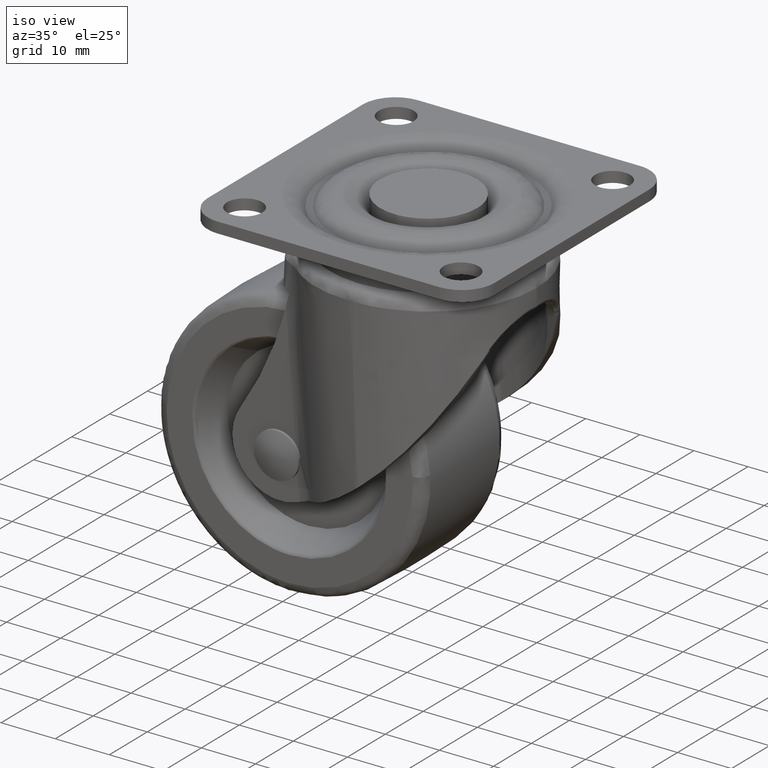
[diagram: clean part render]
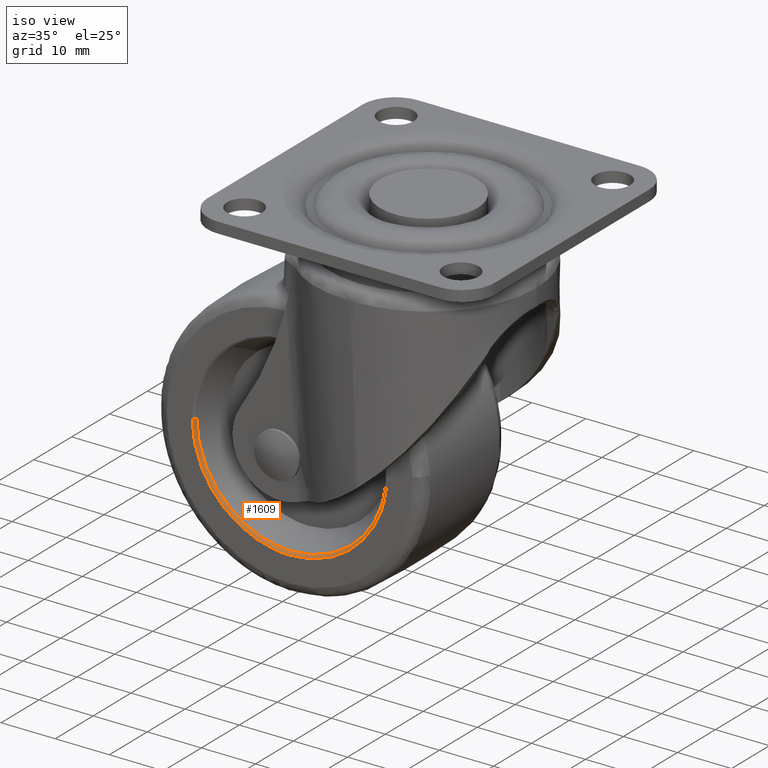
[diagram: same view with one face highlighted and labeled with its STEP entity id]
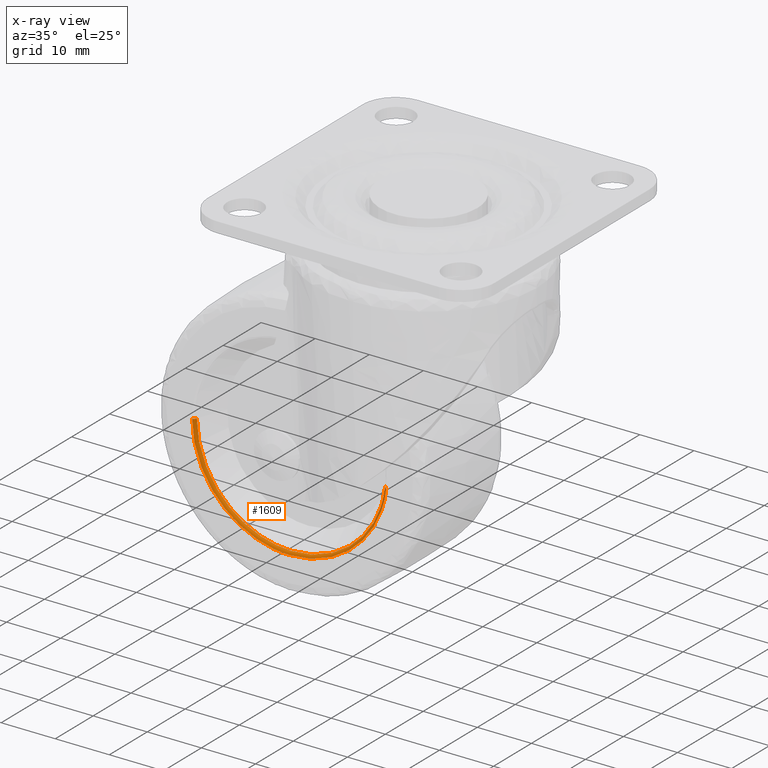
[diagram: x-ray of the same camera — body ghosted, the highlighted face saturated]
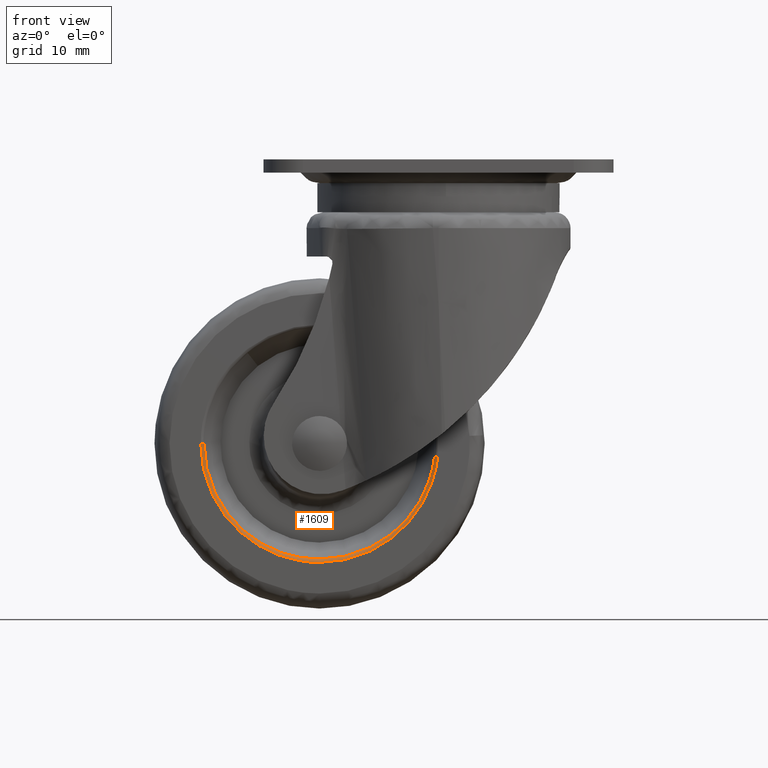
[diagram: same view with one face highlighted and labeled with its STEP entity id]
A machine part, iso view. The second image highlights one B-rep face of the part: STEP entity #1609.
The next image is the same camera in x-ray: the body ghosted, the highlighted face saturated — about 0% of this face is hidden behind the body in this view.
A second angle (front view) of the same face is appended — the face is thin or edge-on in the first view.
In plain terms, the highlighted face is a freeform B-spline surface patch.
Its self-contained STEP definition (entity closure, byte-faithful):
#314=CARTESIAN_POINT('',(-17.501290000000001,-10.500000000058130,-42.999999999999993));
#315=VERTEX_POINT('',#314);
#329=CARTESIAN_POINT('',(0.0,-10.500000000000000,-60.501289999999997));
#330=VERTEX_POINT('',#329);
#331=CARTESIAN_POINT('',(-17.501290000000001,-10.500000000058130,-43.000000000000007));
#332=CARTESIAN_POINT('',(-17.501290000000012,-10.500000000000000,-60.501289999999997));
#333=CARTESIAN_POINT('',(0.0,-10.500000000000000,-60.501289999999997));
#341=(BOUNDED_CURVE()B_SPLINE_CURVE(2,(#331,#332,#333),.UNSPECIFIED.,.F.,.U.)B_SPLINE_CURVE_WITH_KNOTS((3,3),(0.750000000000000,1.0),.UNSPECIFIED.)CURVE()GEOMETRIC_REPRESENTATION_ITEM()RATIONAL_B_SPLINE_CURVE((1.0,0.707106781186547,1.0))REPRESENTATION_ITEM(''));
#342=EDGE_CURVE('',#315,#330,#341,.T.);
#344=CARTESIAN_POINT('',(17.384235050748920,-10.500000000098749,-45.020772962114407));
#345=VERTEX_POINT('',#344);
#346=CARTESIAN_POINT('',(0.0,-10.500000000000000,-60.501289999999997));
#347=CARTESIAN_POINT('',(15.584753498702792,-10.500000000000000,-60.501290000000004));
#348=CARTESIAN_POINT('',(17.384235050748924,-10.500000000098749,-45.020772962114407));
#356=(BOUNDED_CURVE()B_SPLINE_CURVE(2,(#346,#347,#348),.UNSPECIFIED.,.F.,.U.)B_SPLINE_CURVE_WITH_KNOTS((3,3),(0.0,0.229999999999323),.UNSPECIFIED.)CURVE()GEOMETRIC_REPRESENTATION_ITEM()RATIONAL_B_SPLINE_CURVE((1.0,0.730538238692417,0.956886118189327))REPRESENTATION_ITEM(''));
#357=EDGE_CURVE('',#330,#345,#356,.T.);
#1487=CARTESIAN_POINT('',(17.880890859675560,-11.0,-45.078505075754123));
#1488=VERTEX_POINT('',#1487);
#1489=CARTESIAN_POINT('',(17.880890859675567,-11.0,-45.078505075754137));
#1490=CARTESIAN_POINT('',(17.384235050949144,-10.999999978971777,-45.020772962102434));
#1491=CARTESIAN_POINT('',(17.384235050748917,-10.500000000098748,-45.020772962114407));
#1499=(BOUNDED_CURVE()B_SPLINE_CURVE(2,(#1489,#1490,#1491),.UNSPECIFIED.,.F.,.U.)B_SPLINE_CURVE_WITH_KNOTS((3,3),(-1.726807256554491,-0.285995334446392),.UNSPECIFIED.)CURVE()GEOMETRIC_REPRESENTATION_ITEM()RATIONAL_B_SPLINE_CURVE((0.844728310412122,0.595760594072297,0.840342784791708))REPRESENTATION_ITEM(''));
#1500=EDGE_CURVE('',#1488,#345,#1499,.T.);
#1519=CARTESIAN_POINT('',(-18.001289999724850,-11.0,-43.0));
#1520=VERTEX_POINT('',#1519);
#1534=CARTESIAN_POINT('',(-18.001289999724861,-11.0,-43.000000000000007));
#1535=CARTESIAN_POINT('',(-17.501290000116246,-10.999999999449708,-43.000000000000007));
#1536=CARTESIAN_POINT('',(-17.501289999999997,-10.500000000058126,-42.999999999999993));
#1544=(BOUNDED_CURVE()B_SPLINE_CURVE(2,(#1534,#1535,#1536),.UNSPECIFIED.,.F.,.U.)B_SPLINE_CURVE_WITH_KNOTS((3,3),(-1.726807298389389,-0.285995334281288),.UNSPECIFIED.)CURVE()GEOMETRIC_REPRESENTATION_ITEM()RATIONAL_B_SPLINE_CURVE((0.882788775813012,0.622603437981385,0.878205638970638))REPRESENTATION_ITEM(''));
#1545=EDGE_CURVE('',#1520,#315,#1544,.T.);
#1552=CARTESIAN_POINT('',(-18.035966975938482,-10.998796057863096,-42.999999999999979));
#1553=CARTESIAN_POINT('',(-18.035966975938496,-10.998796057863091,-61.035966975938479));
#1554=CARTESIAN_POINT('',(-2.208696E-015,-10.998796057863096,-61.035966975938479));
#1555=CARTESIAN_POINT('',(16.060878908462044,-10.998796057863089,-61.035966975938472));
#1556=CARTESIAN_POINT('',(17.915335913943071,-10.998796057863091,-45.082509027045290));
#1557=CARTESIAN_POINT('',(-17.462420128313710,-11.038669809712472,-43.0));
#1558=CARTESIAN_POINT('',(-17.462420128313710,-11.038669809712468,-60.462420128313703));
#1559=CARTESIAN_POINT('',(-2.138459E-015,-11.038669809712472,-60.462420128313710));
#1560=CARTESIAN_POINT('',(15.550140200616724,-11.038669809712468,-60.462420128313710));
#1561=CARTESIAN_POINT('',(17.345625154808889,-11.038669809712472,-45.016284882301314));
#1562=CARTESIAN_POINT('',(-17.502506853163233,-10.465137807991816,-42.999999999999993));
#1563=CARTESIAN_POINT('',(-17.502506853163222,-10.465137807991816,-60.502506853163226));
#1564=CARTESIAN_POINT('',(-2.143368E-015,-10.465137807991816,-60.502506853163226));
#1565=CARTESIAN_POINT('',(15.585837096408559,-10.465137807991816,-60.502506853163247));
#1566=CARTESIAN_POINT('',(17.385443765162691,-10.465137807991814,-45.020913465092327));
#1574=(BOUNDED_SURFACE()B_SPLINE_SURFACE(2,2,((#1552,#1557,#1562),(#1553,#1558,#1563),(#1554,#1559,#1564),(#1555,#1560,#1565),(#1556,#1561,#1566)),.UNSPECIFIED.,.F.,.F.,.U.)B_SPLINE_SURFACE_WITH_KNOTS((3,2,3),(3,3),(0.0,29.882968527787909,57.375299573352791),(0.0,0.911187326585326),.UNSPECIFIED.)GEOMETRIC_REPRESENTATION_ITEM()RATIONAL_B_SPLINE_SURFACE(((0.910069597288582,0.595552229409054,0.905027256244088),(0.643516383594467,0.421119019965908,0.639950910048850),(0.910069597288582,0.595552229409054,0.905027256244088),(0.664840640689996,0.435073676721360,0.661157017744469),(0.870832964232808,0.569875660979023,0.866008018084149)))REPRESENTATION_ITEM('')SURFACE());
#1575=ORIENTED_EDGE('',*,*,#357,.F.);
#1576=ORIENTED_EDGE('',*,*,#342,.F.);
#1577=ORIENTED_EDGE('',*,*,#1545,.F.);
#1578=CARTESIAN_POINT('',(0.0,-11.0,-61.001289999999997));
#1579=VERTEX_POINT('',#1578);
#1580=CARTESIAN_POINT('',(-18.001289999724850,-11.0,-43.0));
#1581=CARTESIAN_POINT('',(-18.001290000000004,-11.0,-61.001289999999990));
#1582=CARTESIAN_POINT('',(0.0,-11.0,-61.001289999999997));
#1590=(BOUNDED_CURVE()B_SPLINE_CURVE(2,(#1580,#1581,#1582),.UNSPECIFIED.,.F.,.U.)B_SPLINE_CURVE_WITH_KNOTS((3,3),(0.750000000000000,1.0),.UNSPECIFIED.)CURVE()GEOMETRIC_REPRESENTATION_ITEM()RATIONAL_B_SPLINE_CURVE((1.0,0.707106781186548,1.0))REPRESENTATION_ITEM(''));
#1591=EDGE_CURVE('',#1520,#1579,#1590,.T.);
#1592=ORIENTED_EDGE('',*,*,#1591,.T.);
#1593=CARTESIAN_POINT('',(0.0,-11.0,-61.001289999999997));
#1594=CARTESIAN_POINT('',(16.029999348772972,-11.0,-61.001289999999983));
#1595=CARTESIAN_POINT('',(17.880890859675567,-10.999999999999998,-45.078505075754123));
#1603=(BOUNDED_CURVE()B_SPLINE_CURVE(2,(#1593,#1594,#1595),.UNSPECIFIED.,.F.,.U.)B_SPLINE_CURVE_WITH_KNOTS((3,3),(0.0,0.229999999995744),.UNSPECIFIED.)CURVE()GEOMETRIC_REPRESENTATION_ITEM()RATIONAL_B_SPLINE_CURVE((1.0,0.730538238696611,0.956886118182282))REPRESENTATION_ITEM(''));
#1604=EDGE_CURVE('',#1579,#1488,#1603,.T.);
#1605=ORIENTED_EDGE('',*,*,#1604,.T.);
#1606=ORIENTED_EDGE('',*,*,#1500,.T.);
#1607=EDGE_LOOP('',(#1575,#1576,#1577,#1592,#1605,#1606));
#1608=FACE_OUTER_BOUND('',#1607,.T.);
#1609=ADVANCED_FACE('',(#1608),#1574,.T.);